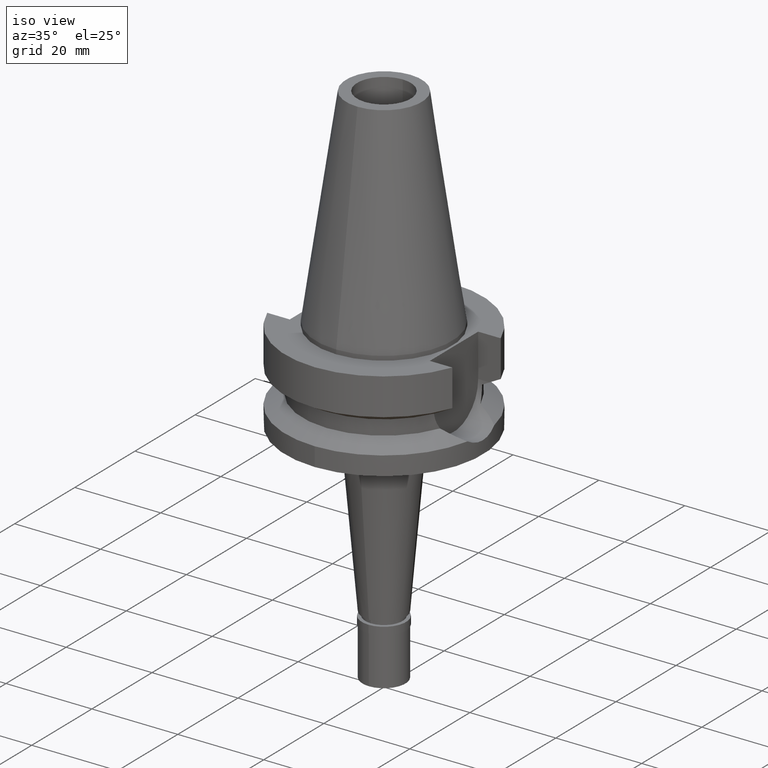
[diagram: clean part render]
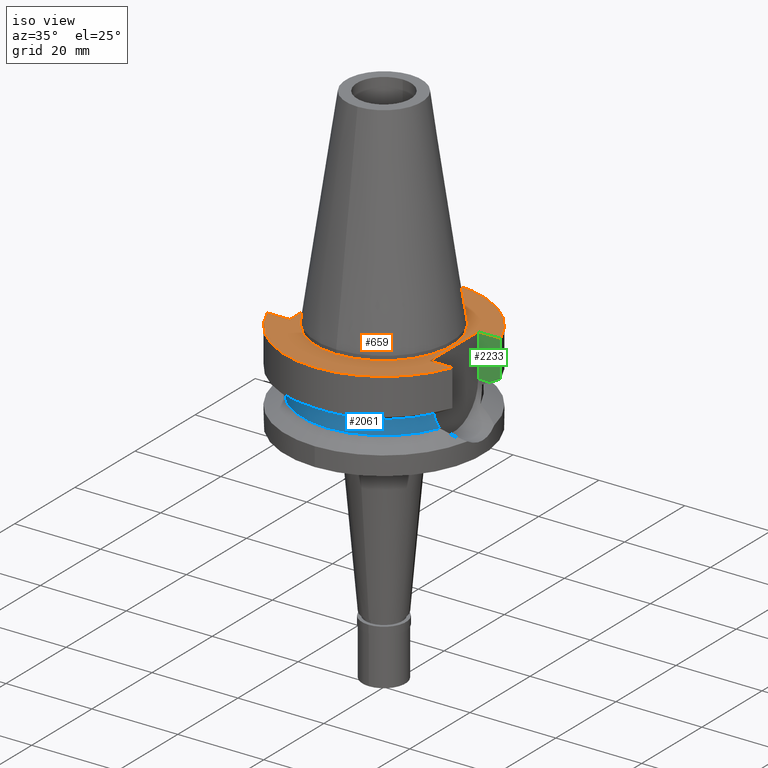
[diagram: same view with three faces highlighted in distinct colors, each labeled with its STEP entity id]
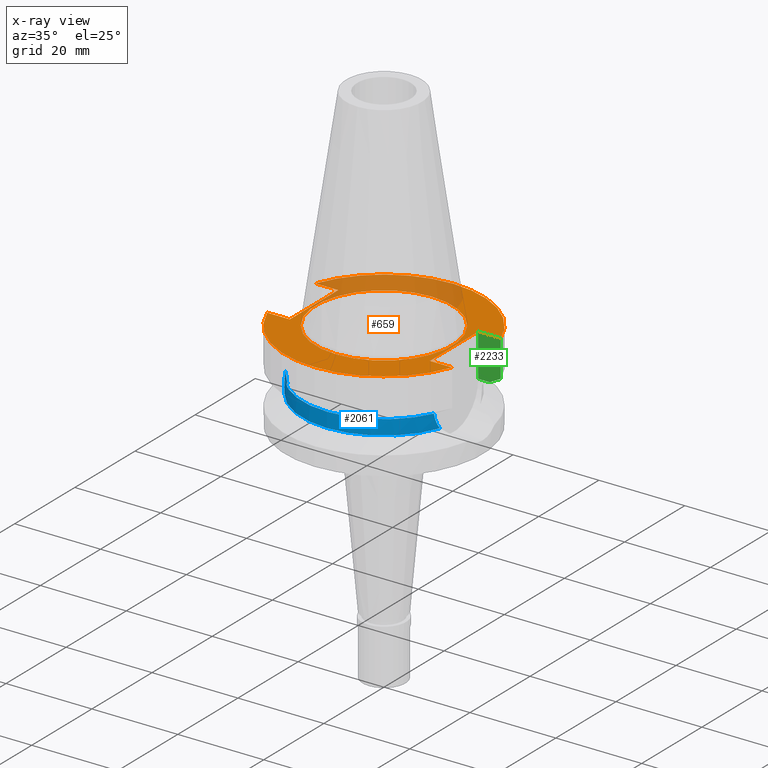
[diagram: x-ray of the same camera — body ghosted, the three highlighted faces saturated]
A machine part, iso view with three faces highlighted in distinct colors.
The next image is the same camera in x-ray (body ghosted, the three faces saturated) — at least one of them is partly hidden behind the body in this view.
Their STEP definitions:

[orange] entity #659 — the highlighted planar face has unit normal (0, 0, -1).
#23 = VERTEX_POINT ( 'NONE', #449 ) ;
#68 = AXIS2_PLACEMENT_3D ( 'NONE', #613, #2872, #180 ) ;
#102 = VERTEX_POINT ( 'NONE', #941 ) ;
#113 = LINE ( 'NONE', #128, #1196 ) ;
#128 = CARTESIAN_POINT ( 'NONE',  ( 16.29999999999999716, 8.050000000000000711, -1.000000000000000000 ) ) ;
#130 = ORIENTED_EDGE ( 'NONE', *, *, #2436, .F. ) ;
#142 = CARTESIAN_POINT ( 'NONE',  ( 0.0000000000000000000, -15.87500000000000000, -1.000000000000000000 ) ) ;
#166 = CARTESIAN_POINT ( 'NONE',  ( 21.54524309446999908, -8.050000000000000711, -1.000000000000000000 ) ) ;
#178 = CARTESIAN_POINT ( 'NONE',  ( -21.54524309446999908, 8.050000000000000711, -1.000000000000000000 ) ) ;
#180 = DIRECTION ( 'NONE',  ( 0.0000000000000000000, -1.000000000000000000, 0.0000000000000000000 ) ) ;
#207 = DIRECTION ( 'NONE',  ( 0.0000000000000000000, -1.000000000000000000, 0.0000000000000000000 ) ) ;
#240 = ORIENTED_EDGE ( 'NONE', *, *, #1047, .F. ) ;
#264 = FACE_OUTER_BOUND ( 'NONE', #511, .T. ) ;
#277 = CARTESIAN_POINT ( 'NONE',  ( 0.0000000000000000000, 1.212400331155999925E-14, -1.000000000000000000 ) ) ;
#280 = CARTESIAN_POINT ( 'NONE',  ( -16.29999999999999716, -8.050000000000000711, -1.000000000000000000 ) ) ;
#294 = EDGE_CURVE ( 'NONE', #1739, #102, #1355, .T. ) ;
#298 = CIRCLE ( 'NONE', #1975, 23.00000000000000000 ) ;
#338 = VERTEX_POINT ( 'NONE', #1353 ) ;
#377 = DIRECTION ( 'NONE',  ( -1.000000000000000000, 9.347030801892000173E-14, 0.0000000000000000000 ) ) ;
#389 = LINE ( 'NONE', #1297, #767 ) ;
#404 = ORIENTED_EDGE ( 'NONE', *, *, #696, .F. ) ;
#448 = CARTESIAN_POINT ( 'NONE',  ( 0.0000000000000000000, 1.890670960863999669E-14, -1.000000000000000000 ) ) ;
#449 = CARTESIAN_POINT ( 'NONE',  ( -16.29999999999999716, -8.050000000000000711, -1.000000000000000000 ) ) ;
#511 = EDGE_LOOP ( 'NONE', ( #2404, #2705, #240, #130, #2855, #2491, #2669, #404 ) ) ;
#552 = CARTESIAN_POINT ( 'NONE',  ( -16.29999999999999716, 8.050000000000000711, -1.000000000000000000 ) ) ;
#613 = CARTESIAN_POINT ( 'NONE',  ( 0.0000000000000000000, 1.890670960863999669E-14, -1.000000000000000000 ) ) ;
#644 = LINE ( 'NONE', #2804, #819 ) ;
#659 = ADVANCED_FACE ( 'NONE', ( #264, #1163 ), #2089, .F. ) ;
#676 = EDGE_CURVE ( 'NONE', #758, #1246, #644, .T. ) ;
#696 = EDGE_CURVE ( 'NONE', #23, #758, #1042, .T. ) ;
#739 = DIRECTION ( 'NONE',  ( -1.000000000000000000, -9.313164748262000573E-14, 0.0000000000000000000 ) ) ;
#758 = VERTEX_POINT ( 'NONE', #552 ) ;
#767 = VECTOR ( 'NONE', #1991, 1000.000000000000000 ) ;
#819 = VECTOR ( 'NONE', #377, 1000.000000000000000 ) ;
#842 = CARTESIAN_POINT ( 'NONE',  ( 0.0000000000000000000, 1.890670960863999669E-14, -1.000000000000000000 ) ) ;
#880 = DIRECTION ( 'NONE',  ( 0.0000000000000000000, 1.000000000000000000, 0.0000000000000000000 ) ) ;
#918 = EDGE_CURVE ( 'NONE', #102, #1739, #2411, .T. ) ;
#922 = VERTEX_POINT ( 'NONE', #1530 ) ;
#941 = CARTESIAN_POINT ( 'NONE',  ( 0.0000000000000000000, 15.87500000000000000, -1.000000000000000000 ) ) ;
#980 = AXIS2_PLACEMENT_3D ( 'NONE', #1406, #1879, #2767 ) ;
#1019 = AXIS2_PLACEMENT_3D ( 'NONE', #277, #1180, #2033 ) ;
#1042 = LINE ( 'NONE', #1446, #2355 ) ;
#1047 = EDGE_CURVE ( 'NONE', #922, #1299, #389, .T. ) ;
#1163 = FACE_BOUND ( 'NONE', #2881, .T. ) ;
#1180 = DIRECTION ( 'NONE',  ( 0.0000000000000000000, 0.0000000000000000000, -1.000000000000000000 ) ) ;
#1196 = VECTOR ( 'NONE', #2633, 1000.000000000000000 ) ;
#1246 = VERTEX_POINT ( 'NONE', #178 ) ;
#1297 = CARTESIAN_POINT ( 'NONE',  ( 16.29999999999999716, -8.050000000000000711, -1.000000000000000000 ) ) ;
#1298 = ORIENTED_EDGE ( 'NONE', *, *, #294, .F. ) ;
#1299 = VERTEX_POINT ( 'NONE', #166 ) ;
#1308 = EDGE_CURVE ( 'NONE', #2662, #2866, #113, .T. ) ;
#1341 = EDGE_CURVE ( 'NONE', #1299, #338, #298, .T. ) ;
#1353 = CARTESIAN_POINT ( 'NONE',  ( -21.54524309446999908, -8.050000000000000711, -1.000000000000000000 ) ) ;
#1355 = CIRCLE ( 'NONE', #68, 15.87500000000000000 ) ;
#1406 = CARTESIAN_POINT ( 'NONE',  ( 0.0000000000000000000, 1.890670960863999669E-14, -1.000000000000000000 ) ) ;
#1446 = CARTESIAN_POINT ( 'NONE',  ( -16.29999999999999716, -8.050000000000000711, -1.000000000000000000 ) ) ;
#1477 = CARTESIAN_POINT ( 'NONE',  ( 21.54524309446999908, 8.050000000000000711, -1.000000000000000000 ) ) ;
#1530 = CARTESIAN_POINT ( 'NONE',  ( 16.29999999999999716, -8.050000000000000711, -1.000000000000000000 ) ) ;
#1716 = VECTOR ( 'NONE', #739, 1000.000000000000000 ) ;
#1739 = VERTEX_POINT ( 'NONE', #142 ) ;
#1762 = DIRECTION ( 'NONE',  ( 0.0000000000000000000, -1.000000000000000000, 0.0000000000000000000 ) ) ;
#1874 = AXIS2_PLACEMENT_3D ( 'NONE', #448, #2675, #880 ) ;
#1879 = DIRECTION ( 'NONE',  ( 0.0000000000000000000, 0.0000000000000000000, -1.000000000000000000 ) ) ;
#1951 = DIRECTION ( 'NONE',  ( 0.0000000000000000000, 0.0000000000000000000, -1.000000000000000000 ) ) ;
#1975 = AXIS2_PLACEMENT_3D ( 'NONE', #842, #1951, #1762 ) ;
#1991 = DIRECTION ( 'NONE',  ( 1.000000000000000000, -9.347030801892000173E-14, 0.0000000000000000000 ) ) ;
#2033 = DIRECTION ( 'NONE',  ( 0.0000000000000000000, -1.000000000000000000, 0.0000000000000000000 ) ) ;
#2089 = PLANE ( 'NONE',  #1019 ) ;
#2178 = DIRECTION ( 'NONE',  ( 0.0000000000000000000, 1.000000000000000000, 0.0000000000000000000 ) ) ;
#2192 = ORIENTED_EDGE ( 'NONE', *, *, #918, .F. ) ;
#2355 = VECTOR ( 'NONE', #2178, 1000.000000000000000 ) ;
#2404 = ORIENTED_EDGE ( 'NONE', *, *, #2663, .T. ) ;
#2411 = CIRCLE ( 'NONE', #1874, 15.87500000000000000 ) ;
#2436 = EDGE_CURVE ( 'NONE', #2662, #922, #2686, .T. ) ;
#2437 = CIRCLE ( 'NONE', #980, 23.00000000000000000 ) ;
#2491 = ORIENTED_EDGE ( 'NONE', *, *, #2615, .F. ) ;
#2495 = CARTESIAN_POINT ( 'NONE',  ( 16.29999999999999716, 8.050000000000000711, -1.000000000000000000 ) ) ;
#2574 = CARTESIAN_POINT ( 'NONE',  ( 16.29999999999999716, 8.050000000000000711, -1.000000000000000000 ) ) ;
#2615 = EDGE_CURVE ( 'NONE', #1246, #2866, #2437, .T. ) ;
#2633 = DIRECTION ( 'NONE',  ( 1.000000000000000000, 9.380896855521999773E-14, 0.0000000000000000000 ) ) ;
#2662 = VERTEX_POINT ( 'NONE', #2574 ) ;
#2663 = EDGE_CURVE ( 'NONE', #23, #338, #2756, .T. ) ;
#2669 = ORIENTED_EDGE ( 'NONE', *, *, #676, .F. ) ;
#2675 = DIRECTION ( 'NONE',  ( 0.0000000000000000000, 0.0000000000000000000, 1.000000000000000000 ) ) ;
#2686 = LINE ( 'NONE', #2495, #2788 ) ;
#2705 = ORIENTED_EDGE ( 'NONE', *, *, #1341, .F. ) ;
#2756 = LINE ( 'NONE', #280, #1716 ) ;
#2767 = DIRECTION ( 'NONE',  ( 0.0000000000000000000, 1.000000000000000000, 0.0000000000000000000 ) ) ;
#2788 = VECTOR ( 'NONE', #207, 1000.000000000000000 ) ;
#2804 = CARTESIAN_POINT ( 'NONE',  ( -16.29999999999999716, 8.050000000000000711, -1.000000000000000000 ) ) ;
#2855 = ORIENTED_EDGE ( 'NONE', *, *, #1308, .T. ) ;
#2866 = VERTEX_POINT ( 'NONE', #1477 ) ;
#2872 = DIRECTION ( 'NONE',  ( 0.0000000000000000000, 0.0000000000000000000, 1.000000000000000000 ) ) ;
#2881 = EDGE_LOOP ( 'NONE', ( #2192, #1298 ) ) ;

[blue] entity #2061 — the highlighted cylindrical surface (partial cylindrical patch) has radius 19 mm, axis along (0, 0, -1).
#50 = EDGE_CURVE ( 'NONE', #184, #1316, #876, .T. ) ;
#184 = VERTEX_POINT ( 'NONE', #2545 ) ;
#209 = ORIENTED_EDGE ( 'NONE', *, *, #50, .F. ) ;
#286 = CARTESIAN_POINT ( 'NONE',  ( 17.33753429472910312, -7.772924035330798453, -13.04956639104181626 ) ) ;
#301 = CARTESIAN_POINT ( 'NONE',  ( 17.27395772734975310, -7.913379800481585846, -12.45762674857386720 ) ) ;
#431 = CARTESIAN_POINT ( 'NONE',  ( -17.53683850617338180, -7.312769253781011614, -14.31902481030247465 ) ) ;
#467 = DIRECTION ( 'NONE',  ( 0.0000000000000000000, 0.0000000000000000000, -1.000000000000000000 ) ) ;
#516 = CARTESIAN_POINT ( 'NONE',  ( 17.41455400305832768, -7.598412036627368416, -13.60833259787202820 ) ) ;
#646 = ORIENTED_EDGE ( 'NONE', *, *, #1718, .F. ) ;
#673 = CARTESIAN_POINT ( 'NONE',  ( -17.43825996256478561, -7.543902337133847169, -13.75966030973273391 ) ) ;
#697 = CYLINDRICAL_SURFACE ( 'NONE', #1640, 19.00000000000000000 ) ;
#717 = CARTESIAN_POINT ( 'NONE',  ( -17.42163631456515205, -7.582155995879247712, -13.65434988440541630 ) ) ;
#794 = DIRECTION ( 'NONE',  ( 0.0000000000000000000, 0.0000000000000000000, 1.000000000000000000 ) ) ;
#876 = B_SPLINE_CURVE_WITH_KNOTS ( 'NONE', 3,
 ( #917, #2048, #2751, #431, #906, #2736, #1109, #673, #2709, #2950, #2320, #717, #1438, #2104, #1876 ),
 .UNSPECIFIED., .F., .F.,
 ( 4, 2, 2, 1, 1, 1, 2, 2, 4 ),
 ( 0.0000000000000000000, 0.2500000000000069944, 0.3750000000000109357, 0.4375000000000131006, 0.4687500000000142664, 0.4843750000000146549, 0.4921875000000139888, 0.5000000000000133227, 1.000000000000000000 ),
 .UNSPECIFIED. ) ;
#882 = EDGE_LOOP ( 'NONE', ( #209, #1204, #646, #1028 ) ) ;
#888 = DIRECTION ( 'NONE',  ( 0.0000000000000000000, -1.000000000000000000, 0.0000000000000000000 ) ) ;
#906 = CARTESIAN_POINT ( 'NONE',  ( -17.51072787951608589, -7.374839633763387248, -14.18046796376581042 ) ) ;
#917 = CARTESIAN_POINT ( 'NONE',  ( -17.75736593456000278, -6.758398853743999624, -15.32339055352999857 ) ) ;
#996 = CARTESIAN_POINT ( 'NONE',  ( 17.75736593456000278, -6.758398853743999624, -15.32339055352999857 ) ) ;
#1028 = ORIENTED_EDGE ( 'NONE', *, *, #1890, .T. ) ;
#1036 = CARTESIAN_POINT ( 'NONE',  ( -17.23531622822000386, -7.996491147957000223, -11.87660607717000083 ) ) ;
#1109 = CARTESIAN_POINT ( 'NONE',  ( -17.45719485031016305, -7.500152504364808514, -13.87559139676806197 ) ) ;
#1190 = CARTESIAN_POINT ( 'NONE',  ( 17.36640948880742741, -7.707982828101324735, -13.27282317322025129 ) ) ;
#1204 = ORIENTED_EDGE ( 'NONE', *, *, #1387, .T. ) ;
#1247 = AXIS2_PLACEMENT_3D ( 'NONE', #1565, #467, #888 ) ;
#1265 = CARTESIAN_POINT ( 'NONE',  ( 0.0000000000000000000, 1.022848384030000006E-14, -15.32339055352999857 ) ) ;
#1316 = VERTEX_POINT ( 'NONE', #1036 ) ;
#1350 = CIRCLE ( 'NONE', #1247, 19.00000000000000000 ) ;
#1365 = VERTEX_POINT ( 'NONE', #2645 ) ;
#1387 = EDGE_CURVE ( 'NONE', #184, #1365, #2276, .T. ) ;
#1422 = CARTESIAN_POINT ( 'NONE',  ( 17.25079912590762632, -7.963111191490122920, -12.16468723360218007 ) ) ;
#1435 = CARTESIAN_POINT ( 'NONE',  ( 17.41740973184857921, -7.591861673413504263, -13.62698225825793941 ) ) ;
#1438 = CARTESIAN_POINT ( 'NONE',  ( -17.32791110613140617, -7.797407457908311912, -13.04850003618886589 ) ) ;
#1501 = AXIS2_PLACEMENT_3D ( 'NONE', #1265, #794, #1722 ) ;
#1513 = B_SPLINE_CURVE_WITH_KNOTS ( 'NONE', 3,
 ( #2821, #1422, #301, #2341, #286, #1190, #1886, #2805, #2581, #516, #1435, #2354, #1760, #2879, #996 ),
 .UNSPECIFIED., .F., .F.,
 ( 4, 2, 2, 1, 1, 1, 2, 2, 4 ),
 ( 0.0000000000000000000, 0.2500000000000057732, 0.3750000000000092149, 0.4375000000000107692, 0.4687500000000115463, 0.4843750000000119349, 0.4921875000000116573, 0.5000000000000113243, 1.000000000000000000 ),
 .UNSPECIFIED. ) ;
#1565 = CARTESIAN_POINT ( 'NONE',  ( 0.0000000000000000000, 1.093341284896999988E-14, -11.87660944646999894 ) ) ;
#1579 = CARTESIAN_POINT ( 'NONE',  ( 17.23531135313000107, -7.996501749111999402, -11.87660739354000050 ) ) ;
#1640 = AXIS2_PLACEMENT_3D ( 'NONE', #2301, #2314, #2801 ) ;
#1718 = EDGE_CURVE ( 'NONE', #2539, #1365, #1513, .T. ) ;
#1722 = DIRECTION ( 'NONE',  ( 0.0000000000000000000, -1.000000000000000000, 0.0000000000000000000 ) ) ;
#1760 = CARTESIAN_POINT ( 'NONE',  ( 17.50086807631718600, -7.400179108393509786, -14.16641331484967559 ) ) ;
#1876 = CARTESIAN_POINT ( 'NONE',  ( -17.23531622822000386, -7.996491147957000223, -11.87660607717000083 ) ) ;
#1886 = CARTESIAN_POINT ( 'NONE',  ( 17.38156622603388968, -7.673725376824387823, -13.38458314372824454 ) ) ;
#1890 = EDGE_CURVE ( 'NONE', #2539, #1316, #1350, .T. ) ;
#2048 = CARTESIAN_POINT ( 'NONE',  ( -17.68527465925302167, -6.947815190961516230, -15.03067689334821111 ) ) ;
#2061 = ADVANCED_FACE ( 'NONE', ( #2759 ), #697, .T. ) ;
#2104 = CARTESIAN_POINT ( 'NONE',  ( -17.26628505277755110, -7.929743581422772358, -12.45264543983569538 ) ) ;
#2276 = CIRCLE ( 'NONE', #1501, 19.00000000000000000 ) ;
#2301 = CARTESIAN_POINT ( 'NONE',  ( 0.0000000000000000000, 1.890670960863999669E-14, 54.38500000000000512 ) ) ;
#2314 = DIRECTION ( 'NONE',  ( 0.0000000000000000000, 0.0000000000000000000, -1.000000000000000000 ) ) ;
#2320 = CARTESIAN_POINT ( 'NONE',  ( -17.42272085251634195, -7.579664040962321714, -13.66132223661288592 ) ) ;
#2341 = CARTESIAN_POINT ( 'NONE',  ( 17.32020187250967425, -7.811452264079356667, -12.90108126328219740 ) ) ;
#2354 = CARTESIAN_POINT ( 'NONE',  ( 17.41902886904237491, -7.588145056449484116, -13.63749496349419843 ) ) ;
#2539 = VERTEX_POINT ( 'NONE', #1579 ) ;
#2545 = CARTESIAN_POINT ( 'NONE',  ( -17.75736593456000278, -6.758398853743999624, -15.32339055352999857 ) ) ;
#2581 = CARTESIAN_POINT ( 'NONE',  ( 17.41029288300379463, -7.608179589552457323, -13.58035844464430575 ) ) ;
#2645 = CARTESIAN_POINT ( 'NONE',  ( 17.75736593456000278, -6.758398853743999624, -15.32339055352999857 ) ) ;
#2709 = CARTESIAN_POINT ( 'NONE',  ( -17.42911851124039657, -7.564954524494937438, -13.70217975917803876 ) ) ;
#2736 = CARTESIAN_POINT ( 'NONE',  ( -17.47454244282899083, -7.459747681758726934, -13.97656327319555913 ) ) ;
#2751 = CARTESIAN_POINT ( 'NONE',  ( -17.62113139274299556, -7.108367418559089934, -14.74095000872901551 ) ) ;
#2759 = FACE_OUTER_BOUND ( 'NONE', #882, .T. ) ;
#2801 = DIRECTION ( 'NONE',  ( 0.0000000000000000000, -1.000000000000000000, 0.0000000000000000000 ) ) ;
#2805 = CARTESIAN_POINT ( 'NONE',  ( 17.40050758145919474, -7.630565565469848544, -13.51508960625903555 ) ) ;
#2821 = CARTESIAN_POINT ( 'NONE',  ( 17.23531135313000107, -7.996501749111999402, -11.87660739354000050 ) ) ;
#2879 = CARTESIAN_POINT ( 'NONE',  ( 17.61322740991396429, -7.137115852045588404, -14.73814199274329084 ) ) ;
#2950 = CARTESIAN_POINT ( 'NONE',  ( -17.42527060193316046, -7.573803216174606945, -13.67765102006688593 ) ) ;

[green] entity #2233 — the highlighted planar face has unit normal (0, 1, 0).
#51 = LINE ( 'NONE', #1862, #1832 ) ;
#97 = CARTESIAN_POINT ( 'NONE',  ( 16.29999999999999716, 8.050000000000000711, -10.94999999999999929 ) ) ;
#113 = LINE ( 'NONE', #128, #1196 ) ;
#128 = CARTESIAN_POINT ( 'NONE',  ( 16.29999999999999716, 8.050000000000000711, -1.000000000000000000 ) ) ;
#154 = FACE_OUTER_BOUND ( 'NONE', #1124, .T. ) ;
#161 = EDGE_CURVE ( 'NONE', #1026, #2866, #51, .T. ) ;
#274 = DIRECTION ( 'NONE',  ( 0.0000000000000000000, 0.0000000000000000000, -1.000000000000000000 ) ) ;
#601 = CARTESIAN_POINT ( 'NONE',  ( 21.54524325238000060, 8.049999577379001181, -9.567211146543000311 ) ) ;
#612 = LINE ( 'NONE', #2186, #2460 ) ;
#726 = ORIENTED_EDGE ( 'NONE', *, *, #161, .T. ) ;
#745 = LINE ( 'NONE', #1453, #877 ) ;
#877 = VECTOR ( 'NONE', #274, 1000.000000000000000 ) ;
#1026 = VERTEX_POINT ( 'NONE', #601 ) ;
#1112 = VERTEX_POINT ( 'NONE', #97 ) ;
#1124 = EDGE_LOOP ( 'NONE', ( #726, #1519, #1835, #2861, #2779 ) ) ;
#1196 = VECTOR ( 'NONE', #2633, 1000.000000000000000 ) ;
#1245 = EDGE_CURVE ( 'NONE', #1112, #2141, #612, .T. ) ;
#1271 = EDGE_CURVE ( 'NONE', #1026, #2141, #1972, .T. ) ;
#1308 = EDGE_CURVE ( 'NONE', #2662, #2866, #113, .T. ) ;
#1402 = DIRECTION ( 'NONE',  ( -1.843132702715992591E-08, 4.933012910309982838E-08, 0.9999999999999985567 ) ) ;
#1453 = CARTESIAN_POINT ( 'NONE',  ( 16.29999999999999716, 8.050000000000000711, -1.000000000000000000 ) ) ;
#1474 = CARTESIAN_POINT ( 'NONE',  ( 18.96738966530000070, 8.049994318182998043, -10.95000099923000114 ) ) ;
#1477 = CARTESIAN_POINT ( 'NONE',  ( 21.54524309446999908, 8.050000000000000711, -1.000000000000000000 ) ) ;
#1519 = ORIENTED_EDGE ( 'NONE', *, *, #1308, .F. ) ;
#1603 = EDGE_CURVE ( 'NONE', #2662, #1112, #745, .T. ) ;
#1682 = CARTESIAN_POINT ( 'NONE',  ( 18.96738966530000070, 8.049994318182998043, -10.95000099923000114 ) ) ;
#1741 = DIRECTION ( 'NONE',  ( 1.000000000000000000, 0.0000000000000000000, 0.0000000000000000000 ) ) ;
#1832 = VECTOR ( 'NONE', #1402, 1000.000000000000114 ) ;
#1835 = ORIENTED_EDGE ( 'NONE', *, *, #1603, .T. ) ;
#1862 = CARTESIAN_POINT ( 'NONE',  ( 21.54524325238000060, 8.049999577379001181, -9.567211146543000311 ) ) ;
#1972 = B_SPLINE_CURVE_WITH_KNOTS ( 'NONE', 3,
 ( #1986, #2678, #2456, #1474 ),
 .UNSPECIFIED., .F., .F.,
 ( 4, 4 ),
 ( 0.0000000000000000000, 1.000000000000000000 ),
 .UNSPECIFIED. ) ;
#1986 = CARTESIAN_POINT ( 'NONE',  ( 21.54524325238000060, 8.049999577379001181, -9.567211146543000311 ) ) ;
#2141 = VERTEX_POINT ( 'NONE', #1682 ) ;
#2186 = CARTESIAN_POINT ( 'NONE',  ( 16.29999999999999716, 8.050000000000000711, -10.94999999999999929 ) ) ;
#2233 = ADVANCED_FACE ( 'NONE', ( #154 ), #2895, .F. ) ;
#2456 = CARTESIAN_POINT ( 'NONE',  ( 19.78174442298432112, 8.049991903556993122, -10.51718567366341972 ) ) ;
#2460 = VECTOR ( 'NONE', #2884, 1000.000000000000000 ) ;
#2574 = CARTESIAN_POINT ( 'NONE',  ( 16.29999999999999716, 8.050000000000000711, -1.000000000000000000 ) ) ;
#2633 = DIRECTION ( 'NONE',  ( 1.000000000000000000, 9.380896855521999773E-14, 0.0000000000000000000 ) ) ;
#2638 = CARTESIAN_POINT ( 'NONE',  ( 16.29999999999999716, 8.050000000000000711, -10.94999999999999929 ) ) ;
#2643 = AXIS2_PLACEMENT_3D ( 'NONE', #2638, #2670, #1741 ) ;
#2662 = VERTEX_POINT ( 'NONE', #2574 ) ;
#2670 = DIRECTION ( 'NONE',  ( -0.0000000000000000000, 1.000000000000000000, 0.0000000000000000000 ) ) ;
#2678 = CARTESIAN_POINT ( 'NONE',  ( 20.64098922513855783, 8.049999155450747068, -10.05625859774404773 ) ) ;
#2779 = ORIENTED_EDGE ( 'NONE', *, *, #1271, .F. ) ;
#2861 = ORIENTED_EDGE ( 'NONE', *, *, #1245, .T. ) ;
#2866 = VERTEX_POINT ( 'NONE', #1477 ) ;
#2884 = DIRECTION ( 'NONE',  ( 0.9999999999976612042, -2.130104035149915589E-06, -3.746083742387856505E-07 ) ) ;
#2895 = PLANE ( 'NONE',  #2643 ) ;